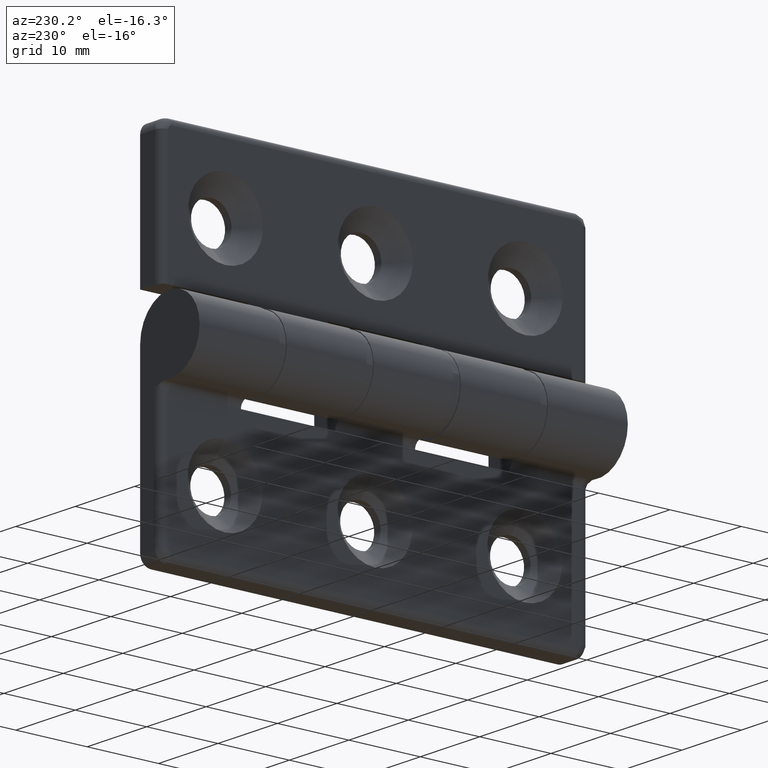
[diagram: clean part render]
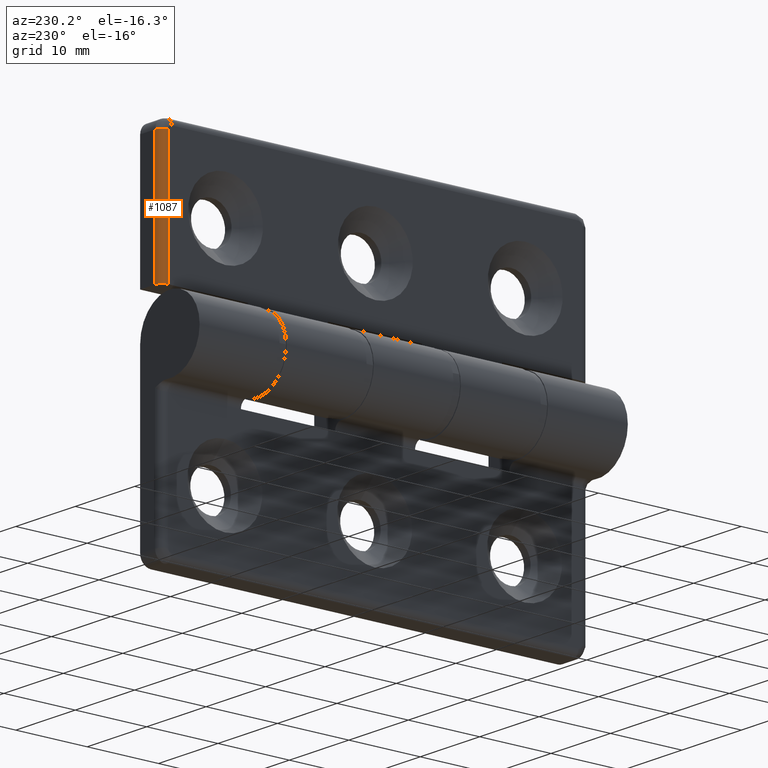
[diagram: same view with one face highlighted and labeled with its STEP entity id]
A machine part, auxiliary view. The second image highlights one B-rep face of the part: STEP entity #1087.
In plain terms, the highlighted cylindrical surface (edge-blend (fillet) strip) has radius 1 mm, axis along (-0, -0, -1).
Its self-contained STEP definition (entity closure, byte-faithful):
#156=FACE_OUTER_BOUND('',#236,.T.);
#236=EDGE_LOOP('',(#920,#921,#922,#923));
#316=LINE('',#1904,#393);
#323=LINE('',#1949,#400);
#393=VECTOR('',#1437,17.4000000000002);
#400=VECTOR('',#1476,17.4000000000002);
#468=CIRCLE('',#1197,1.);
#470=CIRCLE('',#1201,1.);
#550=VERTEX_POINT('',#1901);
#551=VERTEX_POINT('',#1903);
#561=VERTEX_POINT('',#1937);
#564=VERTEX_POINT('',#1947);
#675=EDGE_CURVE('',#551,#550,#316,.T.);
#689=EDGE_CURVE('',#550,#561,#468,.T.);
#693=EDGE_CURVE('',#564,#551,#470,.T.);
#694=EDGE_CURVE('',#561,#564,#323,.T.);
#920=ORIENTED_EDGE('',*,*,#693,.T.);
#921=ORIENTED_EDGE('',*,*,#675,.T.);
#922=ORIENTED_EDGE('',*,*,#689,.T.);
#923=ORIENTED_EDGE('',*,*,#694,.T.);
#1038=CYLINDRICAL_SURFACE('',#1200,1.);
#1087=ADVANCED_FACE('',(#156),#1038,.T.);
#1197=AXIS2_PLACEMENT_3D('',#1939,#1464,#1465);
#1200=AXIS2_PLACEMENT_3D('',#1946,#1472,#1473);
#1201=AXIS2_PLACEMENT_3D('',#1948,#1474,#1475);
#1437=DIRECTION('',(-5.87376257845724E-16,0.,-1.));
#1464=DIRECTION('center_axis',(0.,0.,1.));
#1465=DIRECTION('ref_axis',(-1.,0.,0.));
#1472=DIRECTION('center_axis',(5.87376257845724E-16,0.,1.));
#1473=DIRECTION('ref_axis',(-0.707106781186547,-0.707106781186548,0.));
#1474=DIRECTION('center_axis',(-5.18104078158406E-16,-1.4432899320127E-14,
-1.));
#1475=DIRECTION('ref_axis',(-0.707106781186547,-0.707106781186548,0.));
#1476=DIRECTION('',(5.87376257845724E-16,0.,1.));
#1901=CARTESIAN_POINT('',(1.49999999999999,1.,-23.5));
#1903=CARTESIAN_POINT('',(1.5,1.,-6.09999999999985));
#1904=CARTESIAN_POINT('',(1.49999999999999,1.,-12.4999999977609));
#1937=CARTESIAN_POINT('',(2.49999999999999,0.,-23.5));
#1939=CARTESIAN_POINT('Origin',(2.49999999999999,1.,-23.5));
#1946=CARTESIAN_POINT('Origin',(2.49999999999999,1.,-12.4999999977609));
#1947=CARTESIAN_POINT('',(2.5,0.,-6.09999999999984));
#1948=CARTESIAN_POINT('Origin',(2.5,1.,-6.10000000000001));
#1949=CARTESIAN_POINT('',(2.49999999999999,0.,-12.4999999977609));